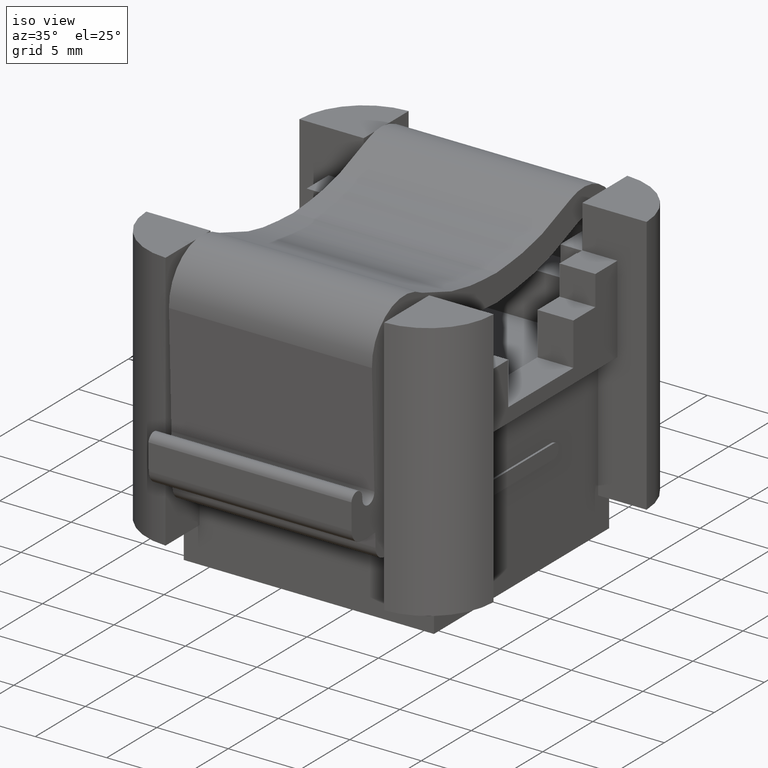
[diagram: clean part render]
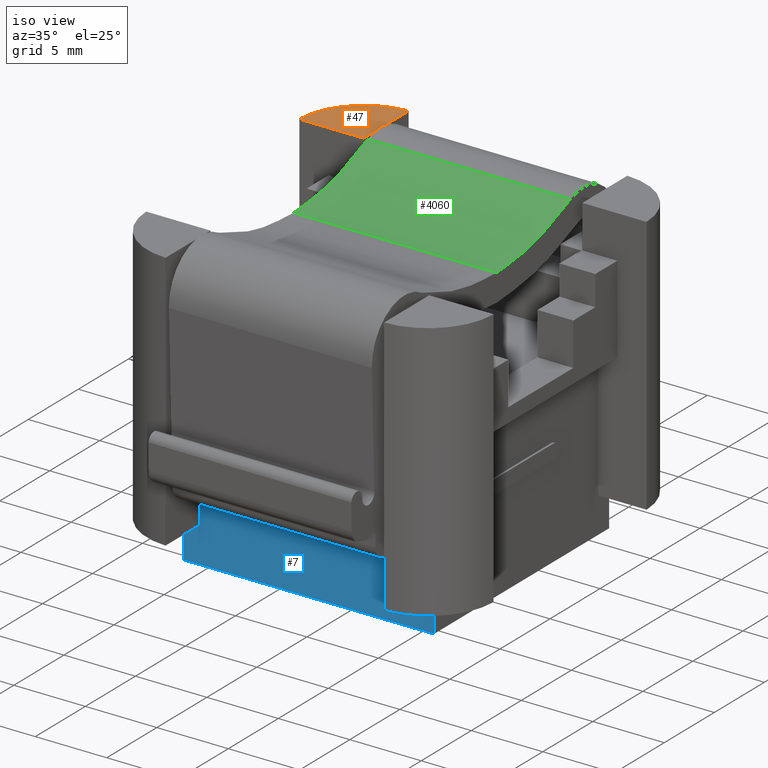
[diagram: same view with three faces highlighted in distinct colors, each labeled with its STEP entity id]
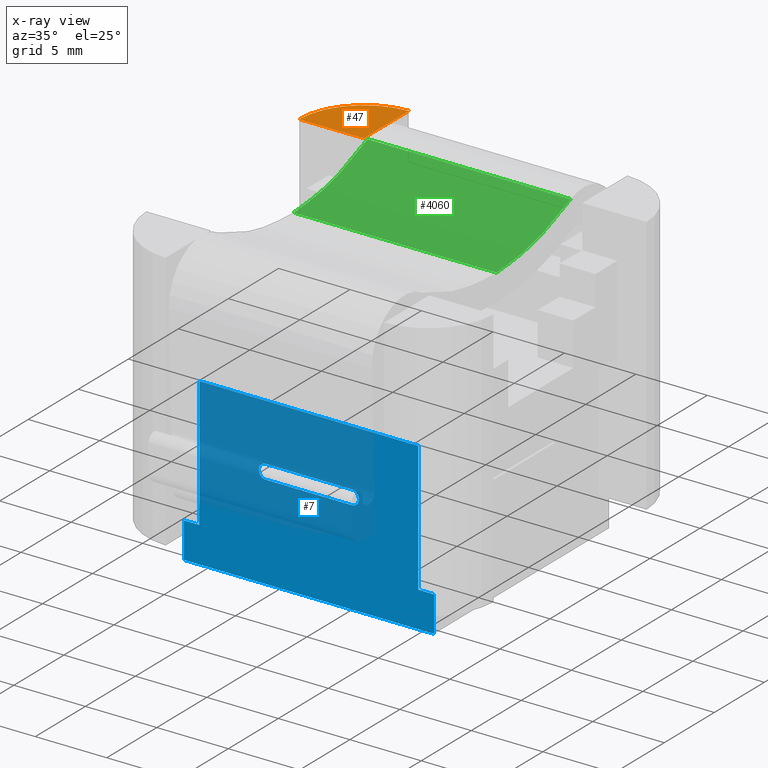
[diagram: x-ray of the same camera — body ghosted, the three highlighted faces saturated]
A machine part, iso view with three faces highlighted in distinct colors.
The next image is the same camera in x-ray (body ghosted, the three faces saturated) — at least one of them is partly hidden behind the body in this view.
Their STEP definitions:

[orange] entity #47 — the highlighted planar face has unit normal (-0, 0, 1).
#47 = ADVANCED_FACE ( 'NONE', ( #3015 ), #3013, .T. ) ;
#60 = LINE ( 'NONE', #79, #926 ) ;
#70 = DIRECTION ( 'NONE',  ( 0.0000000000000000000, 1.000000000000000000, 0.0000000000000000000 ) ) ;
#79 = CARTESIAN_POINT ( 'NONE',  ( 0.1090909090909642800, -14.72606040412509300, 20.50000000000000000 ) ) ;
#152 = LINE ( 'NONE', #163, #1000 ) ;
#163 = CARTESIAN_POINT ( 'NONE',  ( 7.759090909091008300, 19.79524547676573900, 20.50000000000000000 ) ) ;
#198 = DIRECTION ( 'NONE',  ( 1.000000000000000000, 0.0000000000000000000, 0.0000000000000000000 ) ) ;
#548 = AXIS2_PLACEMENT_3D ( 'NONE', #3006, #3017, #3018 ) ;
#717 = CIRCLE ( 'NONE', #753, 4.599999999999988100 ) ;
#753 = AXIS2_PLACEMENT_3D ( 'NONE', #1608, #1621, #1625 ) ;
#926 = VECTOR ( 'NONE', #70, 1000.000000000000000 ) ;
#1000 = VECTOR ( 'NONE', #198, 1000.000000000000000 ) ;
#1608 = CARTESIAN_POINT ( 'NONE',  ( 0.2090909090909642800, 19.69524547676413600, 20.50000000000000000 ) ) ;
#1621 = DIRECTION ( 'NONE',  ( -0.0000000000000000000, 0.0000000000000000000, 1.000000000000000000 ) ) ;
#1625 = DIRECTION ( 'NONE',  ( 1.000000000000000000, 0.0000000000000000000, 0.0000000000000000000 ) ) ;
#1754 = CARTESIAN_POINT ( 'NONE',  ( -4.389822005935756400, 19.79524547676573900, 20.50000000000000000 ) ) ;
#1769 = CARTESIAN_POINT ( 'NONE',  ( 0.1090909090909642800, 24.29415839179089100, 20.50000000000000000 ) ) ;
#1772 = CARTESIAN_POINT ( 'NONE',  ( 0.1090909090909640300, 19.79524547676573900, 20.50000000000000000 ) ) ;
#3006 = CARTESIAN_POINT ( 'NONE',  ( 7.759090909091008300, -14.72606040412509300, 20.50000000000000000 ) ) ;
#3013 = PLANE ( 'NONE',  #548 ) ;
#3015 = FACE_OUTER_BOUND ( 'NONE', #3803, .T. ) ;
#3017 = DIRECTION ( 'NONE',  ( -0.0000000000000000000, 0.0000000000000000000, 1.000000000000000000 ) ) ;
#3018 = DIRECTION ( 'NONE',  ( 1.000000000000000000, 0.0000000000000000000, 0.0000000000000000000 ) ) ;
#3387 = ORIENTED_EDGE ( 'NONE', *, *, #4224, .T. ) ;
#3388 = ORIENTED_EDGE ( 'NONE', *, *, #4003, .T. ) ;
#3447 = ORIENTED_EDGE ( 'NONE', *, *, #4199, .T. ) ;
#3488 = VERTEX_POINT ( 'NONE', #1769 ) ;
#3517 = VERTEX_POINT ( 'NONE', #1754 ) ;
#3537 = VERTEX_POINT ( 'NONE', #1772 ) ;
#3803 = EDGE_LOOP ( 'NONE', ( #3387, #3447, #3388 ) ) ;
#4003 = EDGE_CURVE ( 'NONE', #3488, #3517, #717, .T. ) ;
#4199 = EDGE_CURVE ( 'NONE', #3537, #3488, #60, .T. ) ;
#4224 = EDGE_CURVE ( 'NONE', #3517, #3537, #152, .T. ) ;

[blue] entity #7 — the highlighted planar face has unit normal (0, -1, 0).
#7 = ADVANCED_FACE ( 'NONE', ( #2785, #2805 ), #2806, .T. ) ;
#71 = LINE ( 'NONE', #126, #911 ) ;
#120 = DIRECTION ( 'NONE',  ( 0.0000000000000000000, 0.0000000000000000000, 1.000000000000000000 ) ) ;
#126 = CARTESIAN_POINT ( 'NONE',  ( 0.1090909090909642800, 3.396544284896433600, 11.40000000000000000 ) ) ;
#256 = LINE ( 'NONE', #319, #1016 ) ;
#319 = CARTESIAN_POINT ( 'NONE',  ( 0.2090909090909657000, 3.396544284896433600, -0.2000000000000005100 ) ) ;
#320 = DIRECTION ( 'NONE',  ( -1.000000000000000000, 0.0000000000000000000, 0.0000000000000000000 ) ) ;
#509 = AXIS2_PLACEMENT_3D ( 'NONE', #2777, #2814, #2781 ) ;
#663 = CIRCLE ( 'NONE', #666, 0.5000000000000004400 ) ;
#666 = AXIS2_PLACEMENT_3D ( 'NONE', #1646, #1653, #1655 ) ;
#673 = VECTOR ( 'NONE', #2333, 1000.000000000000000 ) ;
#675 = VECTOR ( 'NONE', #2356, 1000.000000000000000 ) ;
#689 = VECTOR ( 'NONE', #2323, 1000.000000000000000 ) ;
#726 = VECTOR ( 'NONE', #1114, 1000.000000000000000 ) ;
#728 = VECTOR ( 'NONE', #1135, 1000.000000000000000 ) ;
#740 = CIRCLE ( 'NONE', #741, 0.5000000000000004400 ) ;
#741 = AXIS2_PLACEMENT_3D ( 'NONE', #1195, #1191, #1173 ) ;
#801 = VECTOR ( 'NONE', #1472, 1000.000000000000000 ) ;
#878 = VECTOR ( 'NONE', #1084, 1000.000000000000000 ) ;
#911 = VECTOR ( 'NONE', #120, 1000.000000000000000 ) ;
#947 = VECTOR ( 'NONE', #1051, 1000.000000000000000 ) ;
#1016 = VECTOR ( 'NONE', #320, 1000.000000000000000 ) ;
#1045 = LINE ( 'NONE', #1046, #947 ) ;
#1046 = CARTESIAN_POINT ( 'NONE',  ( 16.50909090909099000, 3.396544284896433600, 2.299999999999999800 ) ) ;
#1051 = DIRECTION ( 'NONE',  ( -1.000000000000000000, 0.0000000000000000000, 0.0000000000000000000 ) ) ;
#1059 = LINE ( 'NONE', #1073, #878 ) ;
#1073 = CARTESIAN_POINT ( 'NONE',  ( 0.2090909090909657000, 3.396544284896433600, 11.40000000000000000 ) ) ;
#1084 = DIRECTION ( 'NONE',  ( 1.000000000000000000, 0.0000000000000000000, 0.0000000000000000000 ) ) ;
#1103 = CARTESIAN_POINT ( 'NONE',  ( 7.757931961235370500, 3.396544284896434000, 7.400000000000052800 ) ) ;
#1107 = CARTESIAN_POINT ( 'NONE',  ( 7.757931961235370500, 3.396544284896434000, 6.400000000000051900 ) ) ;
#1114 = DIRECTION ( 'NONE',  ( -1.000000000000000000, 0.0000000000000000000, 0.0000000000000000000 ) ) ;
#1135 = DIRECTION ( 'NONE',  ( -1.000000000000000000, 0.0000000000000000000, 0.0000000000000000000 ) ) ;
#1139 = LINE ( 'NONE', #1103, #726 ) ;
#1145 = LINE ( 'NONE', #1107, #728 ) ;
#1173 = DIRECTION ( 'NONE',  ( 0.0000000000000000000, 0.0000000000000000000, -1.000000000000000000 ) ) ;
#1191 = DIRECTION ( 'NONE',  ( -0.0000000000000000000, 1.000000000000000000, -0.0000000000000000000 ) ) ;
#1195 = CARTESIAN_POINT ( 'NONE',  ( 10.75793196123518700, 3.396544284896434000, 6.900000000000051900 ) ) ;
#1464 = LINE ( 'NONE', #1506, #801 ) ;
#1472 = DIRECTION ( 'NONE',  ( -0.0000000000000000000, -0.0000000000000000000, -1.000000000000000000 ) ) ;
#1506 = CARTESIAN_POINT ( 'NONE',  ( -0.9909090909090587700, 3.396544284896433600, 2.299999999999999800 ) ) ;
#1646 = CARTESIAN_POINT ( 'NONE',  ( 4.757931961235181400, 3.396544284896434000, 6.900000000000051900 ) ) ;
#1653 = DIRECTION ( 'NONE',  ( -0.0000000000000000000, 1.000000000000000000, -0.0000000000000000000 ) ) ;
#1655 = DIRECTION ( 'NONE',  ( 0.0000000000000000000, 0.0000000000000000000, -1.000000000000000000 ) ) ;
#1749 = CARTESIAN_POINT ( 'NONE',  ( -0.9909090909090587700, 3.396544284896433600, -0.2000000000000000100 ) ) ;
#1781 = CARTESIAN_POINT ( 'NONE',  ( 16.50909090909099300, 3.396544284896434000, -0.2000000000000005100 ) ) ;
#1791 = CARTESIAN_POINT ( 'NONE',  ( 0.1090909090909642800, 3.396544284896433600, 11.40000000000000000 ) ) ;
#1795 = CARTESIAN_POINT ( 'NONE',  ( 0.1090909090909718300, 3.396544284896433600, 2.299999999999999800 ) ) ;
#1803 = CARTESIAN_POINT ( 'NONE',  ( 10.75793196123518700, 3.396544284896434000, 7.400000000000052800 ) ) ;
#1817 = CARTESIAN_POINT ( 'NONE',  ( 4.757931961235181400, 3.396544284896434000, 7.400000000000052800 ) ) ;
#1828 = CARTESIAN_POINT ( 'NONE',  ( -0.9909090909090587700, 3.396544284896434000, 2.299999999999999400 ) ) ;
#1831 = CARTESIAN_POINT ( 'NONE',  ( 15.40677301337948700, 3.396544284896433600, 11.40000000000000000 ) ) ;
#1865 = CARTESIAN_POINT ( 'NONE',  ( 15.40677301337948700, 3.396544284896434000, 2.299999999999999800 ) ) ;
#1867 = CARTESIAN_POINT ( 'NONE',  ( 10.75793196123518700, 3.396544284896433600, 6.400000000000051900 ) ) ;
#1873 = CARTESIAN_POINT ( 'NONE',  ( 4.757931961235181400, 3.396544284896434000, 6.400000000000051900 ) ) ;
#1894 = CARTESIAN_POINT ( 'NONE',  ( 16.50909090909099000, 3.396544284896433600, 2.299999999999999800 ) ) ;
#2310 = CARTESIAN_POINT ( 'NONE',  ( 15.40677301337948700, 3.396544284896434000, -17.45113787988657000 ) ) ;
#2318 = LINE ( 'NONE', #2342, #673 ) ;
#2323 = DIRECTION ( 'NONE',  ( 0.0000000000000000000, 0.0000000000000000000, -1.000000000000000000 ) ) ;
#2325 = LINE ( 'NONE', #2352, #675 ) ;
#2333 = DIRECTION ( 'NONE',  ( -0.0000000000000000000, -0.0000000000000000000, -1.000000000000000000 ) ) ;
#2337 = LINE ( 'NONE', #2310, #689 ) ;
#2342 = CARTESIAN_POINT ( 'NONE',  ( 16.50909090909099000, 3.396544284896433600, 2.299999999999999800 ) ) ;
#2352 = CARTESIAN_POINT ( 'NONE',  ( 16.50909090909099000, 3.396544284896433600, 2.299999999999999800 ) ) ;
#2356 = DIRECTION ( 'NONE',  ( -1.000000000000000000, 0.0000000000000000000, 0.0000000000000000000 ) ) ;
#2359 = ORIENTED_EDGE ( 'NONE', *, *, #4268, .F. ) ;
#2360 = ORIENTED_EDGE ( 'NONE', *, *, #3961, .F. ) ;
#2364 = ORIENTED_EDGE ( 'NONE', *, *, #4157, .T. ) ;
#2366 = ORIENTED_EDGE ( 'NONE', *, *, #4207, .F. ) ;
#2374 = ORIENTED_EDGE ( 'NONE', *, *, #4018, .F. ) ;
#2387 = ORIENTED_EDGE ( 'NONE', *, *, #4087, .T. ) ;
#2394 = ORIENTED_EDGE ( 'NONE', *, *, #3970, .T. ) ;
#2399 = ORIENTED_EDGE ( 'NONE', *, *, #3949, .F. ) ;
#2435 = ORIENTED_EDGE ( 'NONE', *, *, #3965, .T. ) ;
#2468 = ORIENTED_EDGE ( 'NONE', *, *, #4016, .T. ) ;
#2470 = ORIENTED_EDGE ( 'NONE', *, *, #4138, .F. ) ;
#2475 = ORIENTED_EDGE ( 'NONE', *, *, #4026, .T. ) ;
#2777 = CARTESIAN_POINT ( 'NONE',  ( 0.2090909090909657000, 3.396544284896433600, 11.40000000000000000 ) ) ;
#2781 = DIRECTION ( 'NONE',  ( 0.0000000000000000000, 0.0000000000000000000, 1.000000000000000000 ) ) ;
#2785 = FACE_OUTER_BOUND ( 'NONE', #3765, .T. ) ;
#2805 = FACE_BOUND ( 'NONE', #3752, .T. ) ;
#2806 = PLANE ( 'NONE',  #509 ) ;
#2814 = DIRECTION ( 'NONE',  ( 0.0000000000000000000, -1.000000000000000000, 0.0000000000000000000 ) ) ;
#3483 = VERTEX_POINT ( 'NONE', #1781 ) ;
#3528 = VERTEX_POINT ( 'NONE', #1791 ) ;
#3533 = VERTEX_POINT ( 'NONE', #1749 ) ;
#3535 = VERTEX_POINT ( 'NONE', #1795 ) ;
#3545 = VERTEX_POINT ( 'NONE', #1803 ) ;
#3558 = VERTEX_POINT ( 'NONE', #1817 ) ;
#3565 = VERTEX_POINT ( 'NONE', #1867 ) ;
#3578 = VERTEX_POINT ( 'NONE', #1865 ) ;
#3580 = VERTEX_POINT ( 'NONE', #1828 ) ;
#3586 = VERTEX_POINT ( 'NONE', #1831 ) ;
#3589 = VERTEX_POINT ( 'NONE', #1873 ) ;
#3613 = VERTEX_POINT ( 'NONE', #1894 ) ;
#3752 = EDGE_LOOP ( 'NONE', ( #2468, #2394, #2374, #2475 ) ) ;
#3765 = EDGE_LOOP ( 'NONE', ( #2359, #2360, #2435, #2399, #2470, #2366, #2364, #2387 ) ) ;
#3949 = EDGE_CURVE ( 'NONE', #3586, #3578, #2337, .T. ) ;
#3961 = EDGE_CURVE ( 'NONE', #3613, #3483, #2318, .T. ) ;
#3965 = EDGE_CURVE ( 'NONE', #3613, #3578, #2325, .T. ) ;
#3970 = EDGE_CURVE ( 'NONE', #3589, #3558, #663, .T. ) ;
#4016 = EDGE_CURVE ( 'NONE', #3565, #3589, #1145, .T. ) ;
#4018 = EDGE_CURVE ( 'NONE', #3545, #3558, #1139, .T. ) ;
#4026 = EDGE_CURVE ( 'NONE', #3545, #3565, #740, .T. ) ;
#4087 = EDGE_CURVE ( 'NONE', #3580, #3533, #1464, .T. ) ;
#4138 = EDGE_CURVE ( 'NONE', #3528, #3586, #1059, .T. ) ;
#4157 = EDGE_CURVE ( 'NONE', #3535, #3580, #1045, .T. ) ;
#4207 = EDGE_CURVE ( 'NONE', #3535, #3528, #71, .T. ) ;
#4268 = EDGE_CURVE ( 'NONE', #3483, #3533, #256, .T. ) ;

[green] entity #4060 — the highlighted face is a freeform B-spline surface patch.
#649 = VECTOR ( 'NONE', #2156, 1000.000000000000000 ) ;
#651 = VECTOR ( 'NONE', #2128, 1000.000000000000000 ) ;
#1250 = CARTESIAN_POINT ( 'NONE',  ( 0.6567730133749468700, 19.41090380287456400, 20.73015507006377700 ) ) ;
#1253 = FACE_OUTER_BOUND ( 'NONE', #3809, .T. ) ;
#1261 = CARTESIAN_POINT ( 'NONE',  ( 14.85677301337509500, 18.79329688035961600, 20.46680043959544200 ) ) ;
#1263 = CARTESIAN_POINT ( 'NONE',  ( 14.85677301337532600, 17.83330741954186400, 20.06905300045737700 ) ) ;
#1265 = CARTESIAN_POINT ( 'NONE',  ( 14.85677301337566700, 16.34862323315057300, 19.55216575971850500 ) ) ;
#1281 = CARTESIAN_POINT ( 'NONE',  ( 0.6567730133750837600, 18.79329688035630100, 20.46680043959544200 ) ) ;
#1282 = CARTESIAN_POINT ( 'NONE',  ( 0.6567730133753138000, 17.83330741953854900, 20.06905300045737700 ) ) ;
#1283 = CARTESIAN_POINT ( 'NONE',  ( 14.85677301337502100, 19.11851779295865600, 20.60546065894609700 ) ) ;
#1287 = CARTESIAN_POINT ( 'NONE',  ( 0.6567730133754597900, 17.21417023808739100, 19.82867453324772800 ) ) ;
#1288 = CARTESIAN_POINT ( 'NONE',  ( 14.85677301337547200, 17.21417023809070600, 19.82867453324772800 ) ) ;
#1289 = CARTESIAN_POINT ( 'NONE',  ( 0.6567730133756566300, 16.34862323314725800, 19.55216575971850500 ) ) ;
#1298 = CARTESIAN_POINT ( 'NONE',  ( 14.85677301337495800, 19.41090380287787900, 20.73015507006377700 ) ) ;
#1300 = CARTESIAN_POINT ( 'NONE',  ( 0.6567730133750084900, 19.11851779295534100, 20.60546065894609700 ) ) ;
#1303 = CARTESIAN_POINT ( 'NONE',  ( 14.85677301337650200, 12.77860723120302200, 18.96532220377718400 ) ) ;
#1305 = CARTESIAN_POINT ( 'NONE',  ( 0.6567730133762973400, 13.62713732492997400, 19.04313980595663500 ) ) ;
#1306 = CARTESIAN_POINT ( 'NONE',  ( 0.6567730133757203600, 16.08855377282052100, 19.47712296361438100 ) ) ;
#1309 = CARTESIAN_POINT ( 'NONE',  ( 14.85677301337619700, 14.09303278420563600, 19.09453682052837900 ) ) ;
#1312 = CARTESIAN_POINT ( 'NONE',  ( 14.85677301337588900, 15.41736227652068300, 19.30881329869667300 ) ) ;
#1319 = CARTESIAN_POINT ( 'NONE',  ( 14.85677301337630900, 13.62713732493329000, 19.04313980595663500 ) ) ;
#1321 = CARTESIAN_POINT ( 'NONE',  ( 0.6567730133766738200, 12.01836745869051600, 18.90638272372490300 ) ) ;
#1323 = CARTESIAN_POINT ( 'NONE',  ( 0.6567730133758775700, 15.41736227651736600, 19.30881329869667300 ) ) ;
#1326 = CARTESIAN_POINT ( 'NONE',  ( 0.6567730133765786700, 12.40230368392261300, 18.93584566178989400 ) ) ;
#1329 = CARTESIAN_POINT ( 'NONE',  ( 0.6567730133764901900, 12.77860723119970700, 18.96532220377718400 ) ) ;
#1332 = CARTESIAN_POINT ( 'NONE',  ( 0.6567730133759849300, 14.98939074706763300, 19.22766748022626600 ) ) ;
#1333 = CARTESIAN_POINT ( 'NONE',  ( 14.85677301337573100, 16.08855377282383600, 19.47712296361438100 ) ) ;
#1336 = CARTESIAN_POINT ( 'NONE',  ( 14.85677301337668500, 12.01836745869383100, 18.90638272372490300 ) ) ;
#1341 = CARTESIAN_POINT ( 'NONE',  ( 14.85677301337599600, 14.98939074707094900, 19.22766748022626600 ) ) ;
#1352 = CARTESIAN_POINT ( 'NONE',  ( 14.85677301337658900, 12.40230368392592700, 18.93584566178989400 ) ) ;
#1353 = CARTESIAN_POINT ( 'NONE',  ( 0.6567730133761846600, 14.09303278420232200, 19.09453682052837900 ) ) ;
#1649 = B_SPLINE_CURVE_WITH_KNOTS ( 'NONE', 3,
 ( #1956, #1964, #1966, #1970, #1971, #1972, #1979, #2002, #2030, #1988 ),
 .UNSPECIFIED., .F., .F.,
 ( 4, 2, 2, 2, 4 ),
 ( 0.02960948862665295500, 0.03152763766756553500, 0.03344578670847811500, 0.03536393574939070100, 0.03728208479030328100 ),
 .UNSPECIFIED. ) ;
#1657 = B_SPLINE_CURVE_WITH_KNOTS ( 'NONE', 3,
 ( #2183, #2206, #2171, #2205, #2187, #2184, #2167, #2170, #2191, #2173, #2185, #2186, #2195, #2188 ),
 .UNSPECIFIED., .F., .F.,
 ( 4, 2, 2, 2, 2, 2, 4 ),
 ( 0.0000000000000000000, 1.072232776561036000, 3.216698329683108000, 4.154372927596950800, 5.662681964847657000, 7.170991002098363200, 8.323304406583389400 ),
 .UNSPECIFIED. ) ;
#1883 = CARTESIAN_POINT ( 'NONE',  ( 14.85677301337667800, 12.01836745869384300, 18.90638272372490300 ) ) ;
#1939 = CARTESIAN_POINT ( 'NONE',  ( 14.85677301337495800, 19.41090380287786800, 20.73015507006377700 ) ) ;
#1941 = CARTESIAN_POINT ( 'NONE',  ( 0.6567730133766772600, 12.01836745869051400, 18.90638272372490300 ) ) ;
#1947 = CARTESIAN_POINT ( 'NONE',  ( 0.6567730133749505300, 19.41090380287455700, 20.73015507006377000 ) ) ;
#1956 = CARTESIAN_POINT ( 'NONE',  ( 0.6567730133749505300, 19.41090380287455700, 20.73015507006377000 ) ) ;
#1964 = CARTESIAN_POINT ( 'NONE',  ( 0.6567730133750860900, 18.82277192244627500, 20.47933336176863200 ) ) ;
#1966 = CARTESIAN_POINT ( 'NONE',  ( 0.6567730133752235400, 18.23433312713005000, 20.22847101237354300 ) ) ;
#1970 = CARTESIAN_POINT ( 'NONE',  ( 0.6567730133755018700, 17.04061965182740200, 19.77051795048627600 ) ) ;
#1971 = CARTESIAN_POINT ( 'NONE',  ( 0.6567730133756430900, 16.43639511531070600, 19.56334561684212800 ) ) ;
#1972 = CARTESIAN_POINT ( 'NONE',  ( 0.6567730133759330800, 15.19389728063824100, 19.25380593634036700 ) ) ;
#1979 = CARTESIAN_POINT ( 'NONE',  ( 0.6567730133760801800, 14.56316921098158600, 19.15476754336537700 ) ) ;
#1988 = CARTESIAN_POINT ( 'NONE',  ( 0.6567730133766772600, 12.01836745869051400, 18.90638272372490300 ) ) ;
#2002 = CARTESIAN_POINT ( 'NONE',  ( 0.6567730133763766100, 13.29344037583687800, 19.00532900015809900 ) ) ;
#2030 = CARTESIAN_POINT ( 'NONE',  ( 0.6567730133765254900, 12.65580644781175400, 18.95529924741405700 ) ) ;
#2084 = LINE ( 'NONE', #2133, #651 ) ;
#2116 = LINE ( 'NONE', #2144, #649 ) ;
#2128 = DIRECTION ( 'NONE',  ( 1.000000000000000000, 2.334185942430046700E-013, -1.378492127825591700E-018 ) ) ;
#2133 = CARTESIAN_POINT ( 'NONE',  ( 0.1567730133749569700, 19.41090380287444000, 20.73015507006377300 ) ) ;
#2144 = CARTESIAN_POINT ( 'NONE',  ( 0.1567730133766839000, 12.01836745869040100, 18.90638272372490300 ) ) ;
#2156 = DIRECTION ( 'NONE',  ( 1.000000000000000000, 2.334185942430046700E-013, -1.378492127825591700E-018 ) ) ;
#2167 = CARTESIAN_POINT ( 'NONE',  ( 14.85677301337572900, 16.08855377282383300, 19.47712296361438100 ) ) ;
#2170 = CARTESIAN_POINT ( 'NONE',  ( 14.85677301337588800, 15.41736227652068100, 19.30881329869667300 ) ) ;
#2171 = CARTESIAN_POINT ( 'NONE',  ( 14.85677301337509700, 18.79329688035961300, 20.46680043959543800 ) ) ;
#2173 = CARTESIAN_POINT ( 'NONE',  ( 14.85677301337619800, 14.09303278420564200, 19.09453682052837900 ) ) ;
#2183 = CARTESIAN_POINT ( 'NONE',  ( 14.85677301337495800, 19.41090380287786800, 20.73015507006377700 ) ) ;
#2184 = CARTESIAN_POINT ( 'NONE',  ( 14.85677301337566900, 16.34862323315056900, 19.55216575971850500 ) ) ;
#2185 = CARTESIAN_POINT ( 'NONE',  ( 14.85677301337631000, 13.62713732493328900, 19.04313980595663500 ) ) ;
#2186 = CARTESIAN_POINT ( 'NONE',  ( 14.85677301337650400, 12.77860723120302700, 18.96532220377718400 ) ) ;
#2187 = CARTESIAN_POINT ( 'NONE',  ( 14.85677301337546800, 17.21417023809071600, 19.82867453324772800 ) ) ;
#2188 = CARTESIAN_POINT ( 'NONE',  ( 14.85677301337667800, 12.01836745869384300, 18.90638272372490300 ) ) ;
#2191 = CARTESIAN_POINT ( 'NONE',  ( 14.85677301337599200, 14.98939074707094900, 19.22766748022626600 ) ) ;
#2195 = CARTESIAN_POINT ( 'NONE',  ( 14.85677301337658700, 12.40230368392593300, 18.93584566178989800 ) ) ;
#2205 = CARTESIAN_POINT ( 'NONE',  ( 14.85677301337532300, 17.83330741954186000, 20.06905300045737300 ) ) ;
#2206 = CARTESIAN_POINT ( 'NONE',  ( 14.85677301337502800, 19.11851779295865200, 20.60546065894609700 ) ) ;
#2574 = ORIENTED_EDGE ( 'NONE', *, *, #3845, .T. ) ;
#3168 = ORIENTED_EDGE ( 'NONE', *, *, #3918, .F. ) ;
#3178 = ORIENTED_EDGE ( 'NONE', *, *, #3888, .F. ) ;
#3181 = ORIENTED_EDGE ( 'NONE', *, *, #3885, .T. ) ;
#3649 = VERTEX_POINT ( 'NONE', #1883 ) ;
#3675 = VERTEX_POINT ( 'NONE', #1947 ) ;
#3680 = VERTEX_POINT ( 'NONE', #1939 ) ;
#3700 = VERTEX_POINT ( 'NONE', #1941 ) ;
#3809 = EDGE_LOOP ( 'NONE', ( #3168, #3178, #2574, #3181 ) ) ;
#3837 = B_SPLINE_SURFACE_WITH_KNOTS ( 'NONE', 3, 1, ( 
 ( #1250, #1298 ),
 ( #1300, #1283 ),
 ( #1281, #1261 ),
 ( #1282, #1263 ),
 ( #1287, #1288 ),
 ( #1289, #1265 ),
 ( #1306, #1333 ),
 ( #1323, #1312 ),
 ( #1332, #1341 ),
 ( #1353, #1309 ),
 ( #1305, #1319 ),
 ( #1329, #1303 ),
 ( #1326, #1352 ),
 ( #1321, #1336 ) ),
 .UNSPECIFIED., .F., .F., .F.,
 ( 4, 2, 2, 2, 2, 2, 4 ),
 ( 2, 2 ),
 ( 0.0000000000000000000, 1.072232776561036000, 3.216698329683108000, 4.154372927596950800, 5.662681964847657000, 7.170991002098363200, 8.323304406583389400 ),
 ( 0.0000000000000000000, 1.000000000000000000 ),
 .UNSPECIFIED. ) ;
#3845 = EDGE_CURVE ( 'NONE', #3675, #3700, #1649, .T. ) ;
#3885 = EDGE_CURVE ( 'NONE', #3700, #3649, #2116, .T. ) ;
#3888 = EDGE_CURVE ( 'NONE', #3675, #3680, #2084, .T. ) ;
#3918 = EDGE_CURVE ( 'NONE', #3680, #3649, #1657, .T. ) ;
#4060 = ADVANCED_FACE ( 'NONE', ( #1253 ), #3837, .T. ) ;